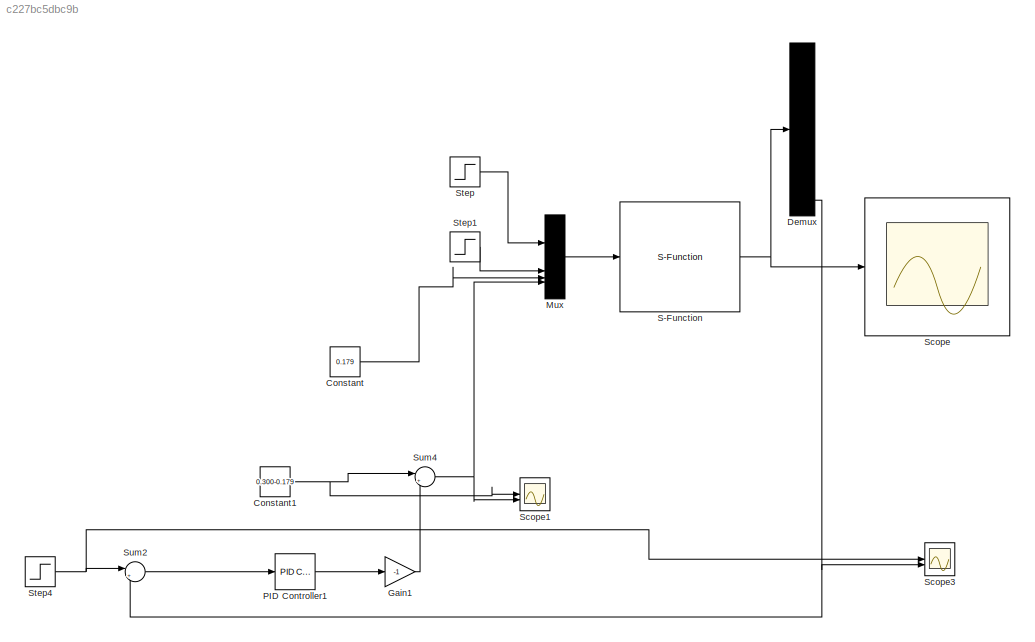
MODEL slx_c227bc5dbc9b
KIND model
CONFIG AbsTol = auto
CONFIG EnableMultiTasking = off
CONFIG FixedStep = auto
CONFIG MaxStep = auto
CONFIG MinStep = auto
CONFIG RelTol = 1e-3
CONFIG SampleTimeConstraint = Unconstrained
CONFIG SolverName = VariableStepAuto
CONFIG StartTime = 0.0
CONFIG StopTime = 250
BLOCK [Constant] Constant
  Value = 0.179
BLOCK [Constant] Constant1
  Value = 0.300-0.179
BLOCK [Demux] Demux
  Outputs = 10
BLOCK [Gain] Gain1
  Gain = -1
BLOCK [Mux] Mux
  DisplayOption = bar
BLOCK [Reference] PID Controller1  REF=slpidlib/PID Controller
  LibrarySourceBlock = simulink/Continuous/PID Controller
  SourceBlock = slpidlib/PID Controller
  SourceType = PID 1dof
BLOCK [S-Function] S-Function
  EnableBusSupport = off
  FunctionName = dist_sf_2_trial
  SFcnIsStateOwnerBlock = off
  SFunctionDeploymentMode = off
BLOCK [Scope] Scope
  Floating = off
  NumInputPorts = 1
  ScopeSpecificationString = Simulink.scopes.TimeScopeBlockCfg('CurrentConfiguration', extmgr.ConfigurationSet(extmgr.Configuration('Core','General UI',true),extmgr.Configuration('Core','Source UI',true),extmgr.Configuration('Sources','WiredSimulink',true,'DataLoggingVariableName','ScopeData1'),extmgr.Configuration('Visuals','Time Domain',true,'SerializedDisplays',{struct('MinYLimReal','-0.02001','MaxYLimReal','0.95683','YLab...<+1581ch>
BLOCK [Scope] Scope1
  Floating = off
  NumInputPorts = 2
  ScopeSpecificationString = Simulink.scopes.TimeScopeBlockCfg('CurrentConfiguration', extmgr.ConfigurationSet(extmgr.Configuration('Core','General UI',true),extmgr.Configuration('Core','Source UI',true),extmgr.Configuration('Sources','WiredSimulink',true,'DataLoggingVariableName','ScopeData1'),extmgr.Configuration('Visuals','Time Domain',true,'SerializedDisplays',{struct('MinYLimReal','0.11609','MaxYLimReal','0.16488','YLabe...<+1402ch>
BLOCK [Scope] Scope3
  Floating = off
  NumInputPorts = 2
  ScopeSpecificationString = Simulink.scopes.TimeScopeBlockCfg('CurrentConfiguration', extmgr.ConfigurationSet(extmgr.Configuration('Core','General UI',true),extmgr.Configuration('Core','Source UI',true),extmgr.Configuration('Sources','WiredSimulink',true,'DataLoggingVariableName','ScopeData4'),extmgr.Configuration('Visuals','Time Domain',true,'SerializedDisplays',{struct('MinYLimReal','0.06932','MaxYLimReal','0.21708','YLabe...<+1446ch>
BLOCK [Step] Step
  After = 0.65
  Before = 0.65
  SampleTime = 0
  Time = 10
BLOCK [Step] Step1
  After = 0.300
  Before = 0.300
  SampleTime = 0
  Time = 10
BLOCK [Step] Step4
  After = 0.1
  Before = 0.2023
  SampleTime = 0
  Time = 10
BLOCK [Sum] Sum2
  Inputs = |+-
BLOCK [Sum] Sum4
  Inputs = |++
NET Constant1:1 -> Scope1:1, Sum4:1
LINE Constant:1 -> Mux:3
NET Demux:10 -> Scope3:2, Sum2:2
LINE Gain1:1 -> Sum4:2
LINE Mux:1 -> S-Function:1
LINE PID Controller1:1 -> Gain1:1
NET S-Function:1 -> Demux:1, Scope:1
LINE Step1:1 -> Mux:2
NET Step4:1 -> Scope3:1, Sum2:1
LINE Step:1 -> Mux:1
LINE Sum2:1 -> PID Controller1:1
NET Sum4:1 -> Mux:4, Scope1:2
note: NET lines group one-source signal fan-out (src -> all destinations, sorted); 1:1 wires keep LINE
